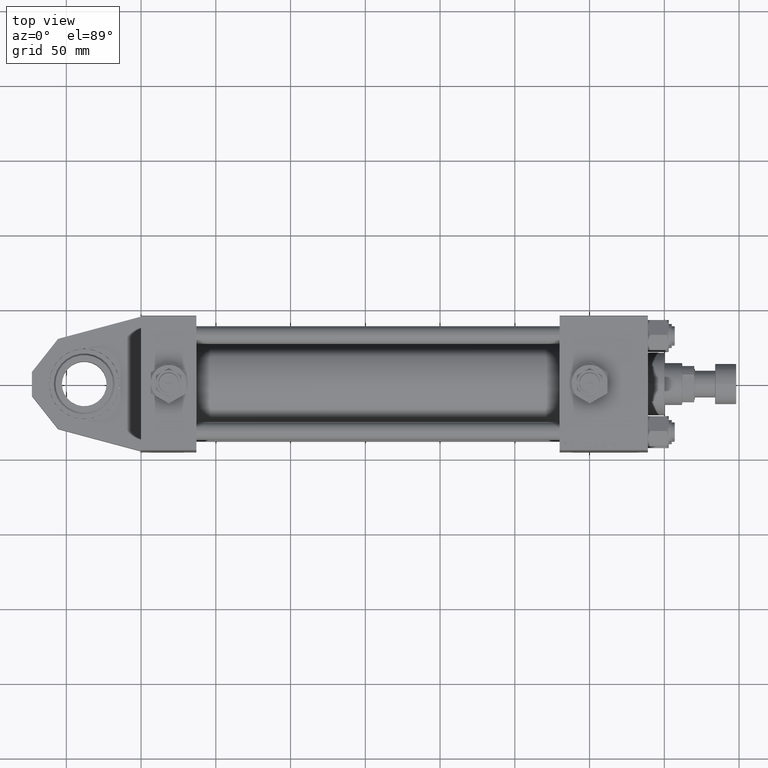
[diagram: clean part render]
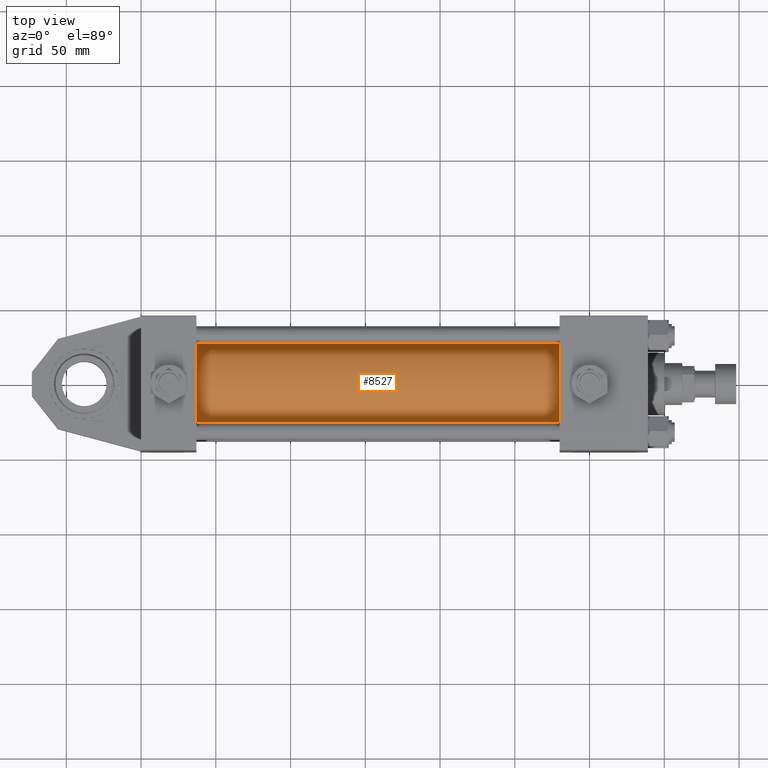
[diagram: same view with one face highlighted and labeled with its STEP entity id]
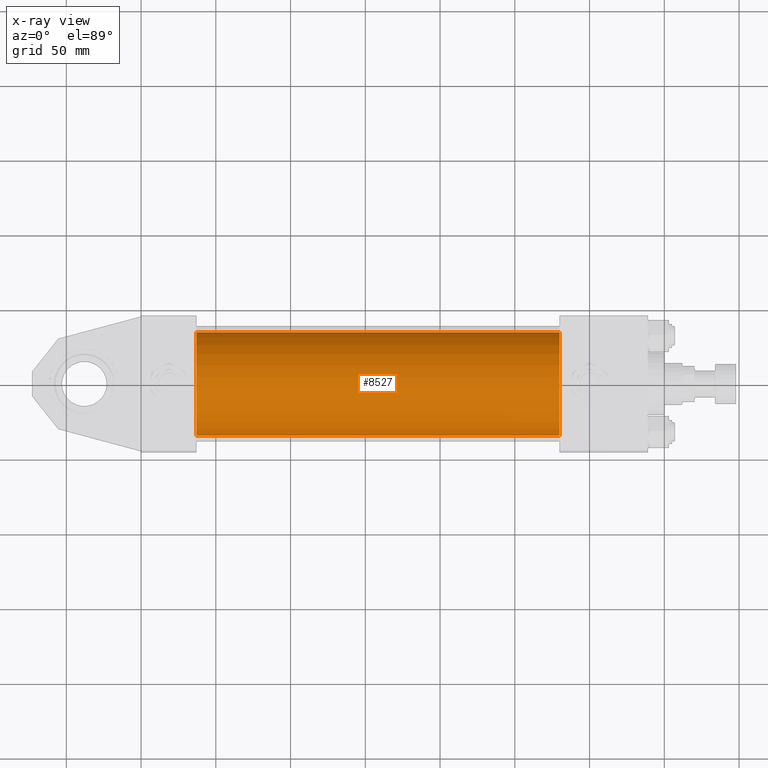
[diagram: x-ray of the same camera — body ghosted, the highlighted face saturated]
A machine part, top view. The second image highlights one B-rep face of the part: STEP entity #8527.
The next image is the same camera in x-ray: the body ghosted, the highlighted face saturated — about 0% of this face is hidden behind the body in this view.
In plain terms, the highlighted cylindrical surface (partial cylindrical patch) has radius 34.5 mm, axis along (-1, 0, -0).
Its self-contained STEP definition (entity closure, byte-faithful):
#123 = FACE_OUTER_BOUND ( 'NONE', #39966, .T. ) ;
#919 = CARTESIAN_POINT ( 'NONE',  ( 279.9999999999999432, -2.602085213965210642E-15, 0.000000000000000000 ) ) ;
#1563 = VERTEX_POINT ( 'NONE', #32412 ) ;
#3406 = DIRECTION ( 'NONE',  ( -1.000000000000000000, -0.000000000000000000, -0.000000000000000000 ) ) ;
#4143 = CARTESIAN_POINT ( 'NONE',  ( 37.00000000000000711, -2.602085213965210642E-15, 34.50000000000000000 ) ) ;
#8527 = ADVANCED_FACE ( 'NONE', ( #123 ), #45408, .T. ) ;
#11189 = LINE ( 'NONE', #25947, #28216 ) ;
#12384 = AXIS2_PLACEMENT_3D ( 'NONE', #23673, #23415, #52169 ) ;
#14512 = VERTEX_POINT ( 'NONE', #28599 ) ;
#15407 = CARTESIAN_POINT ( 'NONE',  ( 279.9999999999999432, 1.622946243093158675E-15, -34.50000000000000000 ) ) ;
#15558 = ORIENTED_EDGE ( 'NONE', *, *, #45268, .T. ) ;
#21029 = ORIENTED_EDGE ( 'NONE', *, *, #24488, .F. ) ;
#22361 = AXIS2_PLACEMENT_3D ( 'NONE', #38848, #35118, #39365 ) ;
#23415 = DIRECTION ( 'NONE',  ( 1.000000000000000000, 0.000000000000000000, 0.000000000000000000 ) ) ;
#23673 = CARTESIAN_POINT ( 'NONE',  ( 279.9999999999999432, -2.602085213965210642E-15, 0.000000000000000000 ) ) ;
#24488 = EDGE_CURVE ( 'NONE', #14512, #1563, #36156, .T. ) ;
#24612 = AXIS2_PLACEMENT_3D ( 'NONE', #919, #33143, #29423 ) ;
#25947 = CARTESIAN_POINT ( 'NONE',  ( 279.9999999999999432, -2.602085213965210642E-15, 34.50000000000000000 ) ) ;
#26540 = VECTOR ( 'NONE', #3406, 1000.000000000000000 ) ;
#27028 = VERTEX_POINT ( 'NONE', #4143 ) ;
#27298 = VERTEX_POINT ( 'NONE', #27806 ) ;
#27806 = CARTESIAN_POINT ( 'NONE',  ( 37.00000000000000711, 1.622946243093158675E-15, -34.50000000000000000 ) ) ;
#28216 = VECTOR ( 'NONE', #42181, 1000.000000000000000 ) ;
#28599 = CARTESIAN_POINT ( 'NONE',  ( 279.9999999999999432, 1.622946243093158675E-15, -34.50000000000000000 ) ) ;
#29423 = DIRECTION ( 'NONE',  ( 0.000000000000000000, 0.000000000000000000, 1.000000000000000000 ) ) ;
#31016 = ORIENTED_EDGE ( 'NONE', *, *, #50158, .F. ) ;
#32412 = CARTESIAN_POINT ( 'NONE',  ( 279.9999999999999432, -2.602085213965210642E-15, 34.50000000000000000 ) ) ;
#33143 = DIRECTION ( 'NONE',  ( -1.000000000000000000, -0.000000000000000000, -0.000000000000000000 ) ) ;
#35118 = DIRECTION ( 'NONE',  ( 1.000000000000000000, -0.000000000000000000, 0.000000000000000000 ) ) ;
#36156 = CIRCLE ( 'NONE', #12384, 34.50000000000000000 ) ;
#38689 = ORIENTED_EDGE ( 'NONE', *, *, #47578, .T. ) ;
#38848 = CARTESIAN_POINT ( 'NONE',  ( 37.00000000000000711, -2.602085213965210642E-15, 0.000000000000000000 ) ) ;
#39365 = DIRECTION ( 'NONE',  ( 0.000000000000000000, 0.000000000000000000, 1.000000000000000000 ) ) ;
#39966 = EDGE_LOOP ( 'NONE', ( #21029, #15558, #38689, #31016 ) ) ;
#42181 = DIRECTION ( 'NONE',  ( -1.000000000000000000, -0.000000000000000000, -0.000000000000000000 ) ) ;
#42766 = CIRCLE ( 'NONE', #22361, 34.50000000000000000 ) ;
#45268 = EDGE_CURVE ( 'NONE', #14512, #27298, #47909, .T. ) ;
#45408 = CYLINDRICAL_SURFACE ( 'NONE', #24612, 34.50000000000000000 ) ;
#47578 = EDGE_CURVE ( 'NONE', #27298, #27028, #42766, .T. ) ;
#47909 = LINE ( 'NONE', #15407, #26540 ) ;
#50158 = EDGE_CURVE ( 'NONE', #1563, #27028, #11189, .T. ) ;
#52169 = DIRECTION ( 'NONE',  ( 0.000000000000000000, 0.000000000000000000, -1.000000000000000000 ) ) ;